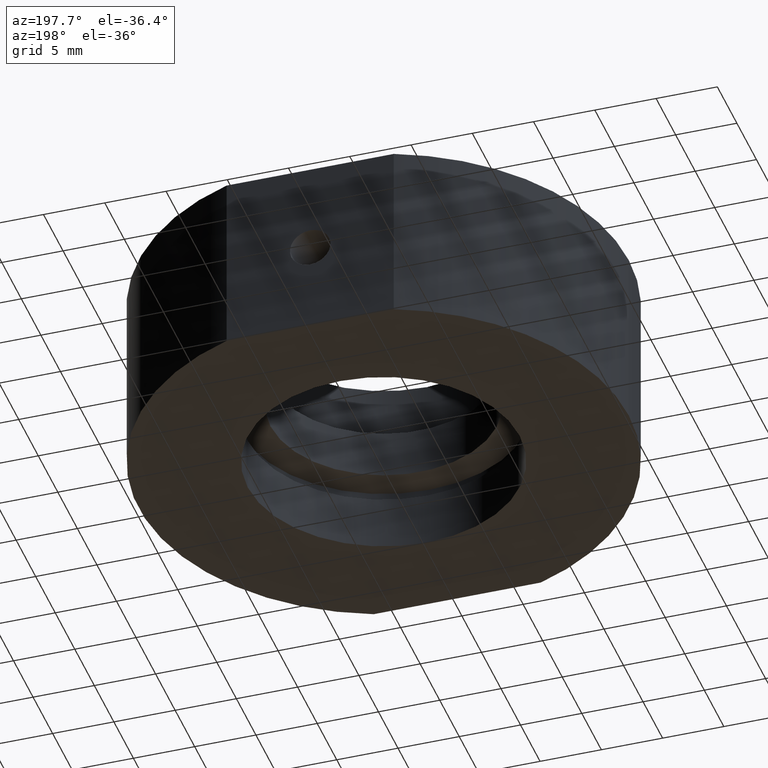
[diagram: clean part render]
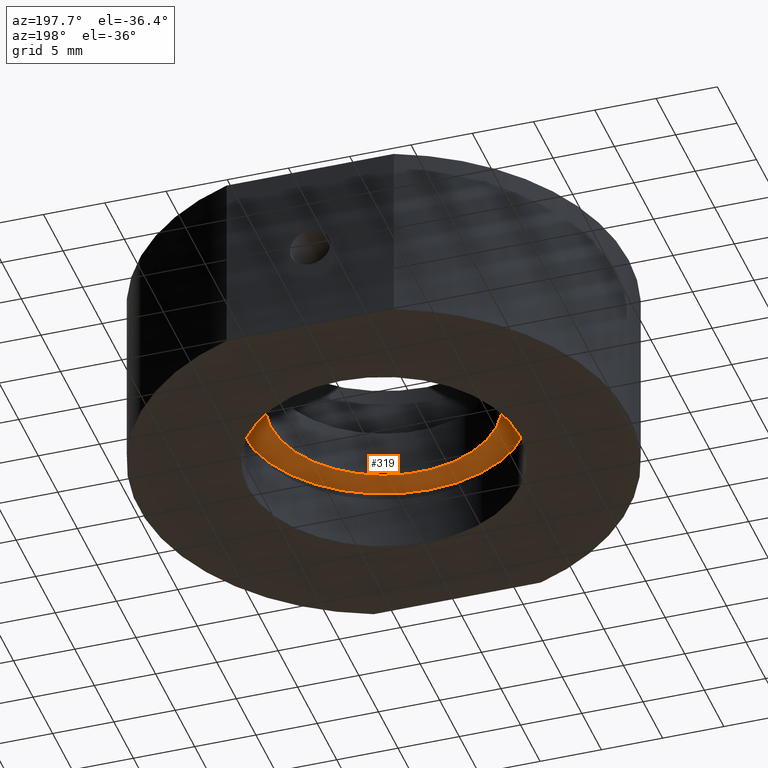
[diagram: same view with one face highlighted and labeled with its STEP entity id]
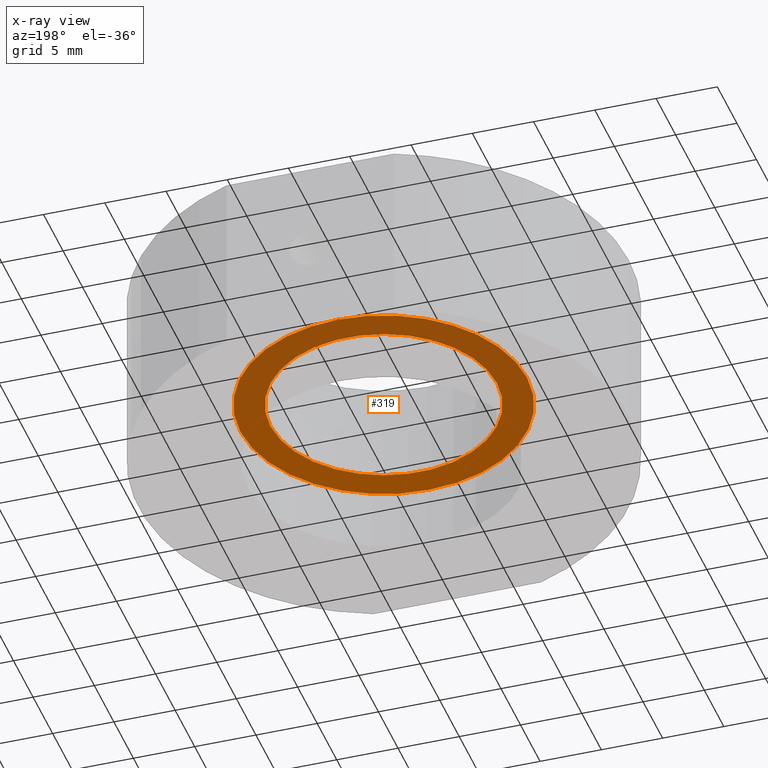
[diagram: x-ray of the same camera — body ghosted, the highlighted face saturated]
A machine part, auxiliary view. The second image highlights one B-rep face of the part: STEP entity #319.
The next image is the same camera in x-ray: the body ghosted, the highlighted face saturated — about 59% of this face is hidden behind the body in this view.
In plain terms, the highlighted planar face has unit normal (0, 0, 1).
Its self-contained STEP definition (entity closure, byte-faithful):
#63 = CIRCLE ( 'NONE', #90, 11.69999999999999900 ) ;
#80 = EDGE_CURVE ( 'NONE', #811, #431, #519, .T. ) ;
#86 = CARTESIAN_POINT ( 'NONE',  ( 3.666478391855845600E-015, 0.0000000000000000000, -2.000000000000001800 ) ) ;
#90 = AXIS2_PLACEMENT_3D ( 'NONE', #632, #173, #703 ) ;
#102 = VERTEX_POINT ( 'NONE', #150 ) ;
#108 = AXIS2_PLACEMENT_3D ( 'NONE', #86, #219, #367 ) ;
#118 = EDGE_LOOP ( 'NONE', ( #205, #832 ) ) ;
#124 = CARTESIAN_POINT ( 'NONE',  ( 9.250000000000003600, 1.132798289211301700E-015, -2.000000000000003100 ) ) ;
#150 = CARTESIAN_POINT ( 'NONE',  ( -11.69999999999999600, 0.0000000000000000000, -2.000000000000004000 ) ) ;
#173 = DIRECTION ( 'NONE',  ( -1.224646799147350500E-016, -0.0000000000000000000, -1.000000000000000000 ) ) ;
#199 = EDGE_LOOP ( 'NONE', ( #794, #302 ) ) ;
#205 = ORIENTED_EDGE ( 'NONE', *, *, #766, .T. ) ;
#213 = AXIS2_PLACEMENT_3D ( 'NONE', #564, #779, #558 ) ;
#219 = DIRECTION ( 'NONE',  ( -1.224646799147350500E-016, -0.0000000000000000000, -1.000000000000000000 ) ) ;
#239 = CIRCLE ( 'NONE', #898, 11.69999999999999900 ) ;
#242 = CIRCLE ( 'NONE', #213, 9.250000000000000000 ) ;
#282 = CARTESIAN_POINT ( 'NONE',  ( -9.249999999999996400, 0.0000000000000000000, -2.000000000000000400 ) ) ;
#302 = ORIENTED_EDGE ( 'NONE', *, *, #80, .F. ) ;
#315 = DIRECTION ( 'NONE',  ( -1.000000000000000000, 0.0000000000000000000, 1.112002228190261000E-016 ) ) ;
#319 = ADVANCED_FACE ( 'NONE', ( #617, #653 ), #569, .F. ) ;
#345 = VERTEX_POINT ( 'NONE', #536 ) ;
#359 = DIRECTION ( 'NONE',  ( 1.000000000000000000, 0.0000000000000000000, -1.224646799147350500E-016 ) ) ;
#367 = DIRECTION ( 'NONE',  ( -1.000000000000000000, 0.0000000000000000000, 1.406532548089303000E-016 ) ) ;
#431 = VERTEX_POINT ( 'NONE', #282 ) ;
#519 = CIRCLE ( 'NONE', #108, 9.250000000000000000 ) ;
#536 = CARTESIAN_POINT ( 'NONE',  ( 11.70000000000000300, 1.432836755002403100E-015, -2.000000000000006700 ) ) ;
#558 = DIRECTION ( 'NONE',  ( -1.000000000000000000, 0.0000000000000000000, 1.406532548089303000E-016 ) ) ;
#564 = CARTESIAN_POINT ( 'NONE',  ( 3.666478391855845600E-015, 0.0000000000000000000, -2.000000000000001800 ) ) ;
#569 = PLANE ( 'NONE',  #724 ) ;
#571 = CARTESIAN_POINT ( 'NONE',  ( 9.250000000000003600, 0.0000000000000000000, -2.000000000000004000 ) ) ;
#617 = FACE_BOUND ( 'NONE', #199, .T. ) ;
#624 = CARTESIAN_POINT ( 'NONE',  ( 3.666478391855845600E-015, 0.0000000000000000000, -2.000000000000005300 ) ) ;
#632 = CARTESIAN_POINT ( 'NONE',  ( 3.666478391855845600E-015, 0.0000000000000000000, -2.000000000000005300 ) ) ;
#653 = FACE_OUTER_BOUND ( 'NONE', #118, .T. ) ;
#664 = DIRECTION ( 'NONE',  ( 1.224646799147350500E-016, 0.0000000000000000000, 1.000000000000000000 ) ) ;
#667 = EDGE_CURVE ( 'NONE', #431, #811, #242, .T. ) ;
#698 = DIRECTION ( 'NONE',  ( -1.224646799147350500E-016, -0.0000000000000000000, -1.000000000000000000 ) ) ;
#703 = DIRECTION ( 'NONE',  ( -1.000000000000000000, 0.0000000000000000000, 1.112002228190261000E-016 ) ) ;
#724 = AXIS2_PLACEMENT_3D ( 'NONE', #571, #664, #359 ) ;
#766 = EDGE_CURVE ( 'NONE', #102, #345, #63, .T. ) ;
#779 = DIRECTION ( 'NONE',  ( -1.224646799147350500E-016, -0.0000000000000000000, -1.000000000000000000 ) ) ;
#794 = ORIENTED_EDGE ( 'NONE', *, *, #667, .F. ) ;
#811 = VERTEX_POINT ( 'NONE', #124 ) ;
#832 = ORIENTED_EDGE ( 'NONE', *, *, #927, .T. ) ;
#898 = AXIS2_PLACEMENT_3D ( 'NONE', #624, #698, #315 ) ;
#927 = EDGE_CURVE ( 'NONE', #345, #102, #239, .T. ) ;